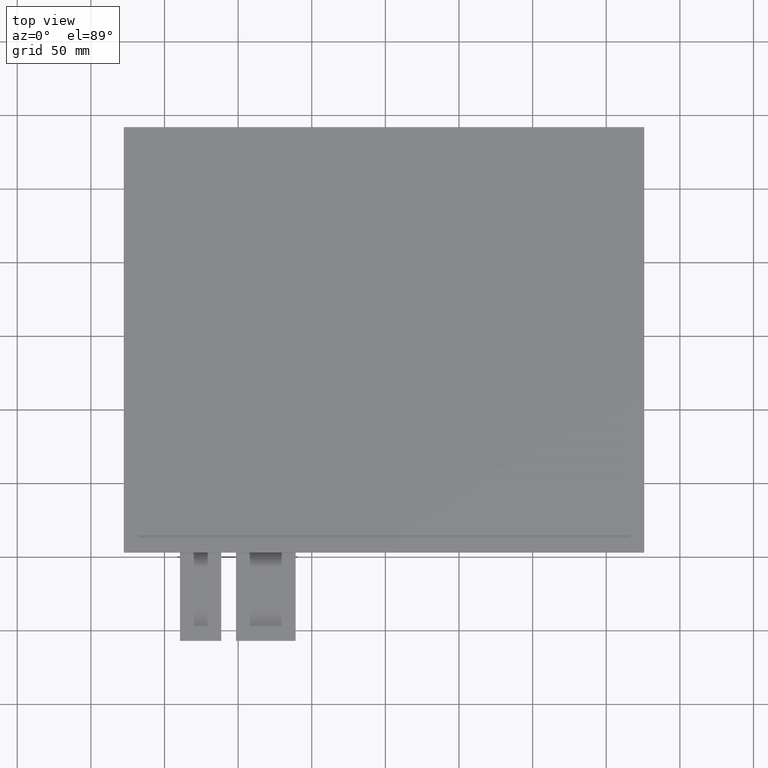
[diagram: clean part render]
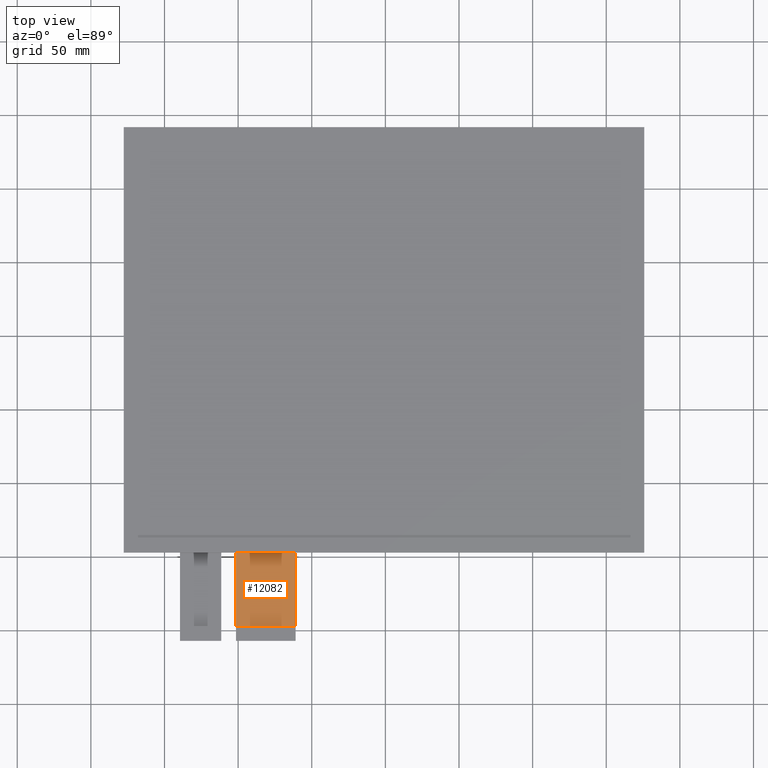
[diagram: same view with one face highlighted and labeled with its STEP entity id]
A machine part, top view. The second image highlights one B-rep face of the part: STEP entity #12082.
In plain terms, the highlighted planar face has unit normal (0, 0, 1).
Its self-contained STEP definition (entity closure, byte-faithful):
#624=PLANE('',#12688);
#1202=FACE_OUTER_BOUND('',#1780,.T.);
#1780=EDGE_LOOP('',(#11417,#11418,#11419,#11420));
#3456=LINE('',#18914,#5164);
#3459=LINE('',#18920,#5167);
#3469=LINE('',#18939,#5177);
#3470=LINE('',#18941,#5178);
#5164=VECTOR('',#15482,10.);
#5167=VECTOR('',#15487,10.);
#5177=VECTOR('',#15505,10.);
#5178=VECTOR('',#15508,10.);
#6338=VERTEX_POINT('',#18911);
#6339=VERTEX_POINT('',#18913);
#6341=VERTEX_POINT('',#18919);
#6346=VERTEX_POINT('',#18937);
#8032=EDGE_CURVE('',#6339,#6338,#3456,.T.);
#8035=EDGE_CURVE('',#6338,#6341,#3459,.T.);
#8045=EDGE_CURVE('',#6341,#6346,#3469,.T.);
#8046=EDGE_CURVE('',#6339,#6346,#3470,.T.);
#11417=ORIENTED_EDGE('',*,*,#8035,.T.);
#11418=ORIENTED_EDGE('',*,*,#8045,.T.);
#11419=ORIENTED_EDGE('',*,*,#8046,.F.);
#11420=ORIENTED_EDGE('',*,*,#8032,.T.);
#12082=ADVANCED_FACE('',(#1202),#624,.T.);
#12688=AXIS2_PLACEMENT_3D('',#18940,#15506,#15507);
#15482=DIRECTION('',(2.96059473233375E-16,-1.,0.));
#15487=DIRECTION('',(1.,0.,0.));
#15505=DIRECTION('',(-1.48029736616688E-16,1.,0.));
#15506=DIRECTION('center_axis',(0.,0.,1.));
#15507=DIRECTION('ref_axis',(1.,0.,0.));
#15508=DIRECTION('',(1.,5.02505470834583E-17,0.));
#18911=CARTESIAN_POINT('',(-101.49,-196.99,-1.1));
#18913=CARTESIAN_POINT('',(-101.49,-146.99,-1.1));
#18914=CARTESIAN_POINT('',(-101.49,-146.99,-1.1));
#18919=CARTESIAN_POINT('',(-60.9899999999999,-196.99,-1.1));
#18920=CARTESIAN_POINT('',(-71.1149999999999,-196.99,-1.1));
#18937=CARTESIAN_POINT('',(-60.9899999999999,-146.99,-1.1));
#18939=CARTESIAN_POINT('',(-60.9899999999999,-206.99,-1.1));
#18940=CARTESIAN_POINT('Origin',(-81.24,-176.99,-1.1));
#18941=CARTESIAN_POINT('',(47.285,-146.99,-1.1));